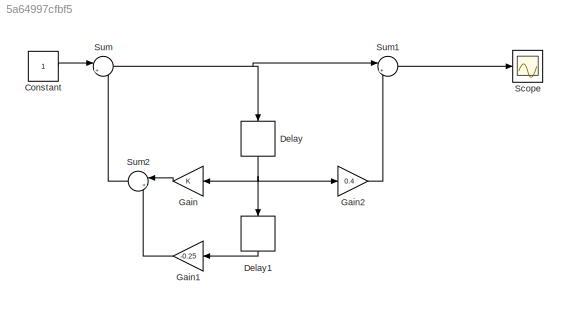
MODEL slx_5a64997cfbf5
KIND model
CONFIG AbsTol = auto
CONFIG EnableMultiTasking = off
CONFIG FixedStep = auto
CONFIG MaxStep = auto
CONFIG MinStep = auto
CONFIG RelTol = 1e-3
CONFIG SampleTimeConstraint = Unconstrained
CONFIG SolverName = VariableStepAuto
CONFIG StartTime = 0.0
CONFIG StopTime = 10.0
BLOCK [Constant] Constant
BLOCK [Delay] Delay
  DelayLength = 1
  InitialCondition = 0
  InputPortMap = u0
  NameLocation = left
  Ports = [1, 1]
BLOCK [Delay] Delay1
  DelayLength = 1
  InitialCondition = 0
  InputPortMap = u0
  NameLocation = left
  Ports = [1, 1]
BLOCK [Gain] Gain
  NameLocation = top
BLOCK [Gain] Gain1
  Gain = -0.25
  NameLocation = top
BLOCK [Gain] Gain2
  Gain = 0.4
BLOCK [Scope] Scope
  Floating = off
  NumInputPorts = 1
  Ports = [1]
  ScopeSpecificationString = Simulink.scopes.TimeScopeBlockCfg('CurrentConfiguration', extmgr.ConfigurationSet(extmgr.Configuration('Core','General UI',true),extmgr.Configuration('Core','Source UI',true),extmgr.Configuration('Sources','WiredSimulink',true),extmgr.Configuration('Visuals','Time Domain',true,'SerializedDisplays',{struct('MinYLimReal','0.425','MaxYLimReal','6.175','YLabelReal','','MinYLimMag','0.425','MaxYLimMag'...<+1359ch>
BLOCK [Sum] Sum
  Inputs = |++
  Ports = [2, 1]
BLOCK [Sum] Sum1
  Inputs = |++
  Ports = [2, 1]
BLOCK [Sum] Sum2
  Inputs = |++
  NameLocation = top
  Ports = [2, 1]
LINE Constant:1 -> Sum:1
LINE Delay1:1 -> Gain1:1
NET Delay:1 -> Delay1:1, Gain2:1, Gain:1
LINE Gain1:1 -> Sum2:2
LINE Gain2:1 -> Sum1:2
LINE Gain:1 -> Sum2:1
LINE Sum1:1 -> Scope:1
LINE Sum2:1 -> Sum:2
NET Sum:1 -> Delay:1, Sum1:1
note: NET lines group one-source signal fan-out (src -> all destinations, sorted); 1:1 wires keep LINE
